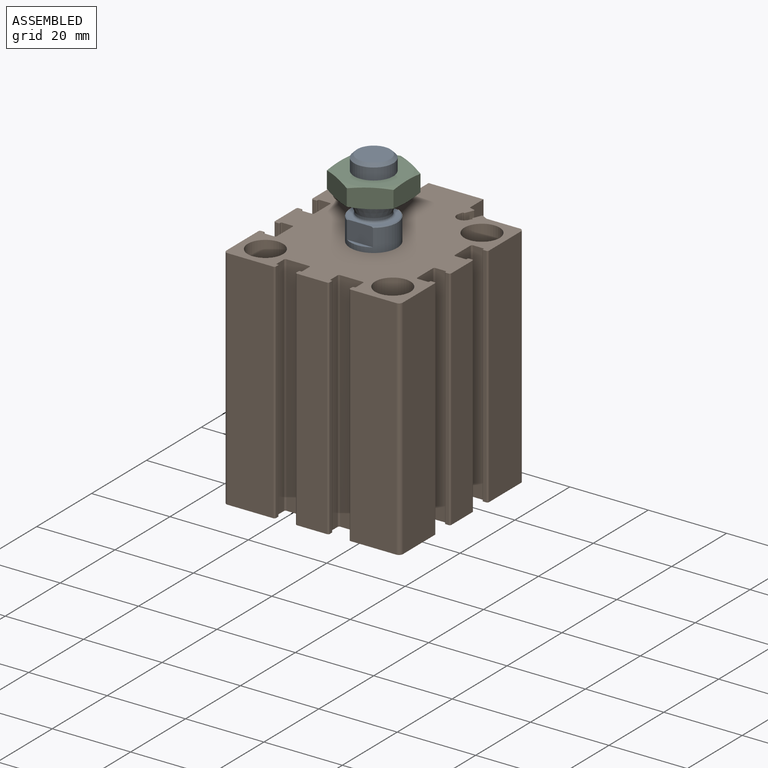
[diagram: assembled view]
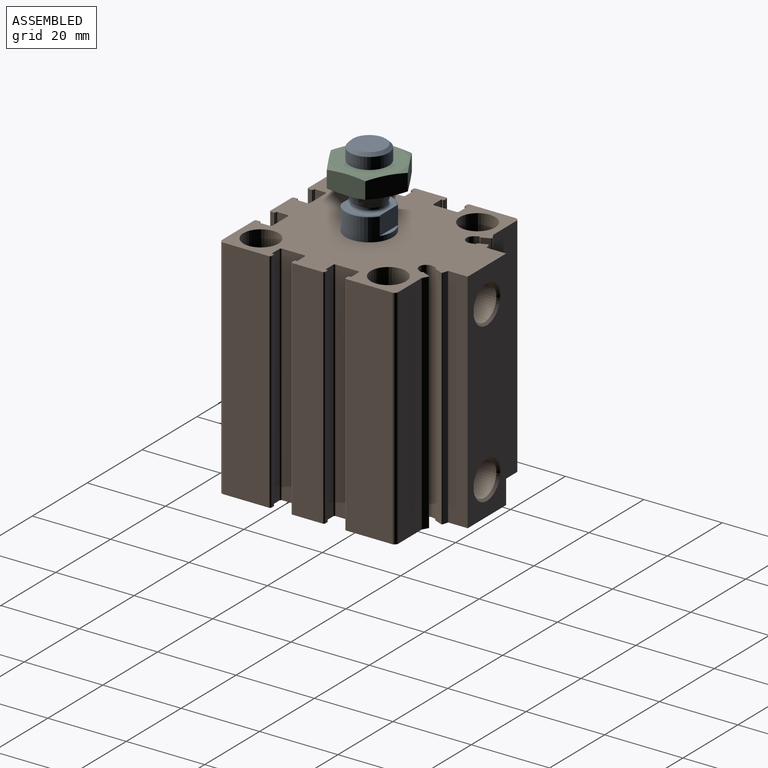
[diagram: assembled view, second angle]
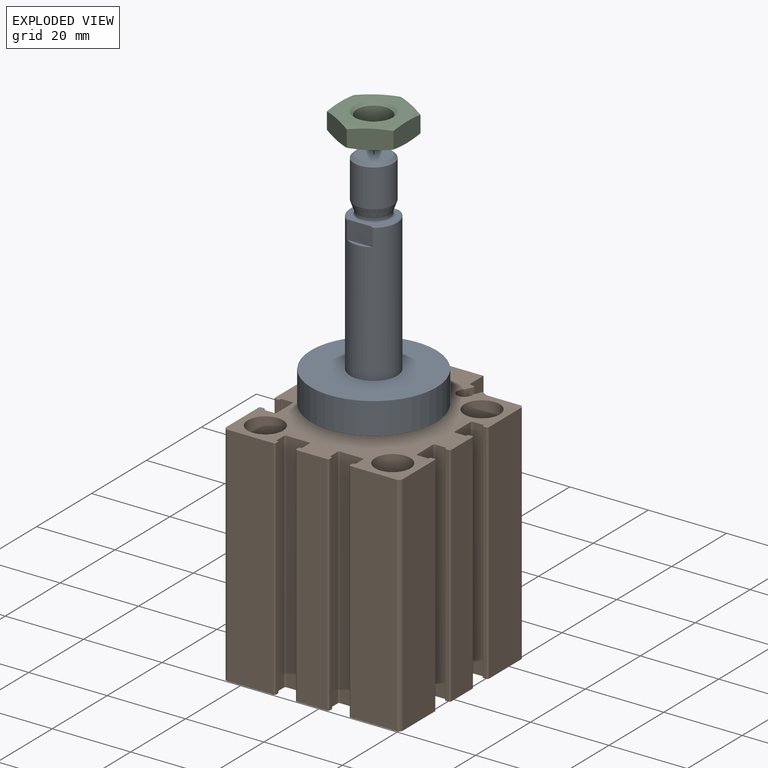
[diagram: exploded view]
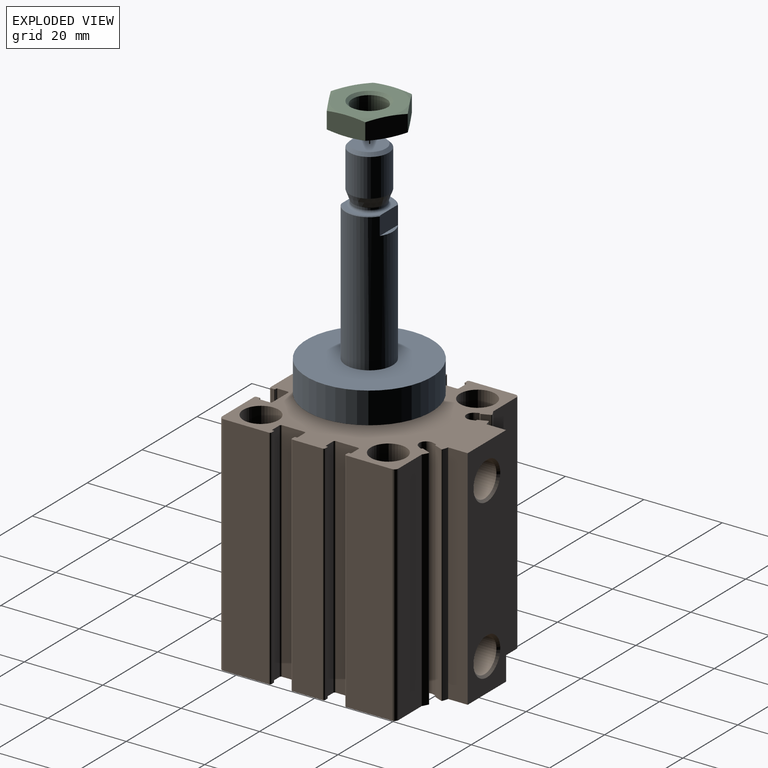
[diagram: exploded view, second angle]
ASSEMBLY  parts=3 mates=2
PART A: 18 faces, bbox 32x32x57.5 mm
  f0: plane 6.64x4.71mm, normal (0,-1,0), area 31.1mm2, adj f11,f12,f13,f14,f15
  f1: torus R=4.7mm, axis (0,0,-1), area 25.6mm2, adj f2,f13
  f2: cylinder r=4.1mm len=8.2mm, axis (0,0,1), area 11mm2, adj f1,f3
  f3: torus R=4.7mm, axis (0,0,-1), area 5.4mm2, adj f2,f4
  f4: cone r=5mm half-angle=20deg, axis (0,0,1), area 72.5mm2, adj f3,f5
  f5: cylinder r=5mm len=10mm, axis (0,0,1), area 302.4mm2, adj f4,f6
  f6: cone r=4.23mm half-angle=45deg, axis (0,0,-1), area 31.5mm2, adj f5,f7
  f7: plane 8.47x8.47mm, normal (0,0,1), area 56.3mm2, adj f6
  f8: plane 32x32mm, normal (0,0,-1), area 804.2mm2, adj f9
  f9: cylinder r=16mm len=32mm, axis (0,0,1), area 804.2mm2, adj f8,f10
  f10: plane 32x32mm, normal (0,0,1), area 691.2mm2, adj f9,f11
  f11: cylinder r=6mm len=35.3mm, axis (0,0,1), area 1267.5mm2, adj f0,f10,f12,f14,f15,f16,f17
  f12: cone r=5.8mm half-angle=45deg, axis (0,0,-1), area 3.4mm2, adj f0,f11,f13,f16
  f13: plane 11.6x10mm, normal (0,0,1), area 29.9mm2, adj f0,f1,f12,f14,f16
  f14: cone r=5.8mm half-angle=45deg, axis (0,0,-1), area 3.4mm2, adj f0,f11,f13,f16
  f15: plane 6.63x1mm, normal (0,0,1), area 4.5mm2, adj f0,f11
  f16: plane 6.64x4.71mm, normal (0,1,0), area 31.1mm2, adj f11,f12,f13,f14,f17
  f17: plane 6.63x1mm, normal (0,0,1), area 4.5mm2, adj f11,f16
PART B: 190 faces, bbox 45x52.5x58 mm
  f0: cylinder r=0.4mm len=58mm, axis (0,0,-1), area 36.4mm2, adj f1,f2,f10,f55
  f1: plane 52.5x45mm, normal (0,0,-1), area 1689.4mm2, adj f0,f2,f6,f43,f46,f49,f55,f57
  f2: plane 58x0.8mm, normal (0,1,0), area 46.4mm2, adj f0,f1,f10,f187
  f3: cylinder r=2.46mm len=15.46mm, axis (0,0,1), area 238.8mm2, adj f45,f188
  f4: cylinder r=2.46mm len=15.46mm, axis (0,0,1), area 238.8mm2, adj f35,f48
  f5: cylinder r=2.46mm len=15.46mm, axis (0,0,1), area 238.8mm2, adj f7,f189
  f6: cylinder r=4.5mm len=9mm, axis (0,0,1), area 161.2mm2, adj f1,f52
  f7: cone r=3mm half-angle=45deg, axis (0,0,1), area 13.1mm2, adj f5,f8
  f8: plane 9x9mm, normal (0,0,1), area 35.3mm2, adj f7,f9
  f9: cylinder r=4.5mm len=9mm, axis (0,0,1), area 161.2mm2, adj f8,f10
  f10: plane 52.5x45mm, normal (0,0,1), area 1576.4mm2, adj f0,f2,f9,f11,f21,f25,f29,f55
  f11: cylinder r=6mm len=12mm, axis (0,0,1), area 169.6mm2, adj f10,f12
  f12: plane 32x32mm, normal (0,0,-1), area 691.2mm2, adj f11,f13
  f13: cylinder r=16mm len=33mm, axis (0,0,1), area 3317.5mm2, adj f12,f14
  f14: plane 32x32mm, normal (0,0,1), area 804.2mm2, adj f13
  f15: cone r=4.86mm half-angle=45deg, axis (0,1,0), area 23.6mm2, adj f16,f141
  f16: cylinder r=4.28mm len=10.42mm, axis (0,1,0), area 280.4mm2, adj f15,f17
  f17: plane 8.57x8.57mm, normal (0,1,0), area 57.6mm2, adj f16
  f18: cone r=4.86mm half-angle=45deg, axis (0,1,0), area 23.6mm2, adj f19,f141
  f19: cylinder r=4.28mm len=10.42mm, axis (0,1,0), area 280.4mm2, adj f18,f20
  f20: plane 8.57x8.57mm, normal (0,1,0), area 57.6mm2, adj f19
  f21: cylinder r=4.5mm len=9mm, axis (0,0,1), area 161.2mm2, adj f10,f22
  f22: plane 9x9mm, normal (0,0,1), area 35.3mm2, adj f21,f23
  f23: cone r=3mm half-angle=45deg, axis (0,0,1), area 13.1mm2, adj f22,f24
  f24: cylinder r=2.46mm len=15.46mm, axis (0,0,1), area 238.8mm2, adj f23,f40
  f25: cylinder r=4.5mm len=9mm, axis (0,0,1), area 161.2mm2, adj f10,f26
  f26: plane 9x9mm, normal (0,0,1), area 35.3mm2, adj f25,f27
  f27: cone r=3mm half-angle=45deg, axis (0,0,1), area 13.1mm2, adj f26,f28
  f28: cylinder r=2.46mm len=15.46mm, axis (0,0,1), area 238.8mm2, adj f27,f37
  f29: cylinder r=4.5mm len=9mm, axis (0,0,1), area 161.2mm2, adj f10,f30
  f30: plane 9x9mm, normal (0,0,1), area 35.3mm2, adj f29,f31
  f31: cone r=3mm half-angle=45deg, axis (0,0,1), area 13.1mm2, adj f30,f32
  f32: cylinder r=2.46mm len=15.46mm, axis (0,0,1), area 238.8mm2, adj f31,f33
  f33: plane 5.2x5.2mm, normal (0,0,-1), area 2.2mm2, adj f32,f34
  f34: cylinder r=2.6mm len=14.6mm, axis (0,0,1), area 238.5mm2, adj f33,f35
  f35: plane 5.2x5.2mm, normal (0,0,1), area 2.2mm2, adj f4,f34
  f36: cylinder r=2.6mm len=14.6mm, axis (0,0,1), area 238.5mm2, adj f188,f189
  f37: plane 5.2x5.2mm, normal (0,0,-1), area 2.2mm2, adj f28,f39
  f38: plane 5.2x5.2mm, normal (0,0,1), area 2.2mm2, adj f39,f56
  f39: cylinder r=2.6mm len=14.6mm, axis (0,0,1), area 238.5mm2, adj f37,f38
  f40: plane 5.2x5.2mm, normal (0,0,-1), area 2.2mm2, adj f24,f42
  f41: plane 5.2x5.2mm, normal (0,0,1), area 2.2mm2, adj f42,f54
  f42: cylinder r=2.6mm len=14.6mm, axis (0,0,1), area 238.5mm2, adj f40,f41
  f43: cylinder r=4.5mm len=9mm, axis (0,0,1), area 161.2mm2, adj f1,f44
  f44: plane 9x9mm, normal (0,0,-1), area 35.3mm2, adj f43,f45
  f45: cone r=2.46mm half-angle=45deg, axis (0,0,-1), area 13.1mm2, adj f3,f44
  f46: cylinder r=4.5mm len=9mm, axis (0,0,1), area 161.2mm2, adj f1,f47
  f47: plane 9x9mm, normal (0,0,-1), area 35.3mm2, adj f46,f48
  f48: cone r=2.46mm half-angle=45deg, axis (0,0,-1), area 13.1mm2, adj f4,f47
  f49: cylinder r=4.5mm len=9mm, axis (0,0,1), area 161.2mm2, adj f1,f50
  f50: plane 9x9mm, normal (0,0,-1), area 35.3mm2, adj f49,f51
  f51: cone r=2.46mm half-angle=45deg, axis (0,0,-1), area 13.1mm2, adj f50,f56
  f52: plane 9x9mm, normal (0,0,-1), area 35.3mm2, adj f6,f53
  f53: cone r=2.46mm half-angle=45deg, axis (0,0,-1), area 13.1mm2, adj f52,f54
  f54: cylinder r=2.46mm len=15.46mm, axis (0,0,1), area 238.8mm2, adj f41,f53
  f55: plane 58x11.65mm, normal (-1,0,0), area 675.7mm2, adj f0,f1,f10,f57
  f56: cylinder r=2.46mm len=15.46mm, axis (0,0,1), area 238.8mm2, adj f38,f51
  f57: cylinder r=1mm len=58mm, axis (0,0,-1), area 91.1mm2, adj f1,f10,f55,f58
  f58: plane 58x11.65mm, normal (0,-1,0), area 675.7mm2, adj f1,f10,f57,f59
  f59: cylinder r=0.4mm len=58mm, axis (0,0,-1), area 36.4mm2, adj f1,f10,f58,f60
  f60: plane 58x0.8mm, normal (1,0,0), area 46.4mm2, adj f1,f10,f59,f61
  f61: cylinder r=0.2mm len=58mm, axis (0,0,-1), area 18.2mm2, adj f1,f10,f60,f62
  f62: plane 58x0.25mm, normal (0,1,0), area 14.5mm2, adj f1,f10,f61,f63
  f63: cylinder r=0.2mm len=58mm, axis (0,0,-1), area 18.2mm2, adj f1,f10,f62,f64
  f64: plane 58x2.6mm, normal (1,0,0), area 150.8mm2, adj f1,f10,f63,f65
  f65: cylinder r=0.4mm len=58mm, axis (0,0,-1), area 36.4mm2, adj f1,f10,f64,f66
  f66: plane 58x5.7mm, normal (0,-1,0), area 330.6mm2, adj f1,f10,f65,f67
  f67: cylinder r=0.4mm len=58mm, axis (0,0,-1), area 36.4mm2, adj f1,f10,f66,f68
  f68: plane 58x2.6mm, normal (-1,0,0), area 150.8mm2, adj f1,f10,f67,f69
  f69: cylinder r=0.2mm len=58mm, axis (0,0,-1), area 18.2mm2, adj f1,f10,f68,f70
  f70: plane 58x0.25mm, normal (0,1,0), area 14.5mm2, adj f1,f10,f69,f71
  f71: cylinder r=0.2mm len=58mm, axis (0,0,-1), area 18.2mm2, adj f1,f10,f70,f72
  f72: plane 58x0.8mm, normal (-1,0,0), area 46.4mm2, adj f1,f10,f71,f73
  f73: cylinder r=0.4mm len=58mm, axis (0,0,-1), area 36.4mm2, adj f1,f10,f72,f74
  f74: plane 58x7.7mm, normal (0,-1,0), area 446.6mm2, adj f1,f10,f73,f75
  f75: cylinder r=0.4mm len=58mm, axis (0,0,-1), area 36.4mm2, adj f1,f10,f74,f76
  f76: plane 58x0.8mm, normal (1,0,0), area 46.4mm2, adj f1,f10,f75,f77
  f77: cylinder r=0.2mm len=58mm, axis (0,0,-1), area 18.2mm2, adj f1,f10,f76,f78
  f78: plane 58x0.25mm, normal (0,1,0), area 14.5mm2, adj f1,f10,f77,f79
  f79: cylinder r=0.2mm len=58mm, axis (0,0,-1), area 18.2mm2, adj f1,f10,f78,f80
  f80: plane 58x2.6mm, normal (1,0,0), area 150.8mm2, adj f1,f10,f79,f81
  f81: cylinder r=0.4mm len=58mm, axis (0,0,-1), area 36.4mm2, adj f1,f10,f80,f82
  f82: plane 58x5.7mm, normal (0,-1,0), area 330.6mm2, adj f1,f10,f81,f83
  f83: cylinder r=0.4mm len=58mm, axis (0,0,-1), area 36.4mm2, adj f1,f10,f82,f84
  f84: plane 58x2.6mm, normal (-1,0,0), area 150.8mm2, adj f1,f10,f83,f85
  f85: cylinder r=0.2mm len=58mm, axis (0,0,-1), area 18.2mm2, adj f1,f10,f84,f86
  f86: plane 58x0.25mm, normal (0,1,0), area 14.5mm2, adj f1,f10,f85,f87
  f87: cylinder r=0.2mm len=58mm, axis (0,0,-1), area 18.2mm2, adj f1,f10,f86,f88
  f88: plane 58x0.8mm, normal (-1,0,0), area 46.4mm2, adj f1,f10,f87,f89
  f89: cylinder r=0.4mm len=58mm, axis (0,0,-1), area 36.4mm2, adj f1,f10,f88,f90
  f90: plane 58x11.65mm, normal (0,-1,0), area 675.7mm2, adj f1,f10,f89,f91
  f91: cylinder r=1mm len=58mm, axis (0,0,-1), area 91.1mm2, adj f1,f10,f90,f92
  f92: plane 58x11.65mm, normal (1,0,0), area 675.7mm2, adj f1,f10,f91,f93
  f93: cylinder r=0.4mm len=58mm, axis (0,0,-1), area 36.4mm2, adj f1,f10,f92,f94
  f94: plane 58x0.8mm, normal (0,1,0), area 46.4mm2, adj f1,f10,f93,f95
  f95: cylinder r=0.2mm len=58mm, axis (0,0,-1), area 18.2mm2, adj f1,f10,f94,f96
  f96: plane 58x0.25mm, normal (-1,0,0), area 14.5mm2, adj f1,f10,f95,f97
  f97: cylinder r=0.2mm len=58mm, axis (0,0,-1), area 18.2mm2, adj f1,f10,f96,f98
  f98: plane 58x2.6mm, normal (0,1,0), area 150.8mm2, adj f1,f10,f97,f99
  f99: cylinder r=0.4mm len=58mm, axis (0,0,-1), area 36.4mm2, adj f1,f10,f98,f100
  f100: plane 58x5.7mm, normal (1,0,0), area 330.6mm2, adj f1,f10,f99,f101
  f101: cylinder r=0.4mm len=58mm, axis (0,0,-1), area 36.4mm2, adj f1,f10,f100,f102
  f102: plane 58x2.6mm, normal (0,-1,0), area 150.8mm2, adj f1,f10,f101,f103
  f103: cylinder r=0.2mm len=58mm, axis (0,0,-1), area 18.2mm2, adj f1,f10,f102,f104
  f104: plane 58x0.25mm, normal (-1,0,0), area 14.5mm2, adj f1,f10,f103,f105
  f105: cylinder r=0.2mm len=58mm, axis (0,0,-1), area 18.2mm2, adj f1,f10,f104,f106
  f106: plane 58x0.8mm, normal (0,-1,0), area 46.4mm2, adj f1,f10,f105,f107
  f107: cylinder r=0.4mm len=58mm, axis (0,0,-1), area 36.4mm2, adj f1,f10,f106,f108
  f108: plane 58x7.7mm, normal (1,0,0), area 446.6mm2, adj f1,f10,f107,f109
  f109: cylinder r=0.4mm len=58mm, axis (0,0,-1), area 36.4mm2, adj f1,f10,f108,f110
  f110: plane 58x0.8mm, normal (0,1,0), area 46.4mm2, adj f1,f10,f109,f111
  f111: cylinder r=0.2mm len=58mm, axis (0,0,-1), area 18.2mm2, adj f1,f10,f110,f112
  f112: plane 58x0.25mm, normal (-1,0,0), area 14.5mm2, adj f1,f10,f111,f113
  f113: cylinder r=0.2mm len=58mm, axis (0,0,-1), area 18.2mm2, adj f1,f10,f112,f114
  f114: plane 58x2.6mm, normal (0,1,0), area 150.8mm2, adj f1,f10,f113,f115
  f115: cylinder r=0.4mm len=58mm, axis (0,0,-1), area 36.4mm2, adj f1,f10,f114,f116
  f116: plane 58x5.7mm, normal (1,0,0), area 330.6mm2, adj f1,f10,f115,f117
  f117: cylinder r=0.4mm len=58mm, axis (0,0,-1), area 36.4mm2, adj f1,f10,f116,f118
  f118: plane 58x2.6mm, normal (0,-1,0), area 150.8mm2, adj f1,f10,f117,f119
  f119: cylinder r=0.2mm len=58mm, axis (0,0,-1), area 18.2mm2, adj f1,f10,f118,f120
  f120: plane 58x0.25mm, normal (-1,0,0), area 14.5mm2, adj f1,f10,f119,f121
  f121: cylinder r=0.2mm len=58mm, axis (0,0,-1), area 18.2mm2, adj f1,f10,f120,f122
  f122: plane 58x0.8mm, normal (0,-1,0), area 46.4mm2, adj f1,f10,f121,f123
  f123: cylinder r=0.4mm len=58mm, axis (0,0,-1), area 36.4mm2, adj f1,f10,f122,f124
  f124: plane 58x11.65mm, normal (1,0,0), area 675.7mm2, adj f1,f10,f123,f125
  f125: cylinder r=1mm len=58mm, axis (0,0,-1), area 91.1mm2, adj f1,f10,f124,f126
  f126: plane 58x8.47mm, normal (0,1,0), area 491.3mm2, adj f1,f10,f125,f127
  f127: cylinder r=26mm len=58mm, axis (0,0,-1), area 93.9mm2, adj f1,f10,f126,f128
  f128: cylinder r=0.2mm len=58mm, axis (0,0,-1), area 19mm2, adj f1,f10,f127,f129
  f129: plane 58x2.07mm, normal (-0.92,0.38,0), area 129.8mm2, adj f1,f10,f128,f130
  f130: cylinder r=0.2mm len=58mm, axis (0,0,-1), area 18.2mm2, adj f1,f10,f129,f131
  f131: cylinder r=0.2mm len=58mm, axis (0,0,-1), area 19.5mm2, adj f1,f10,f130,f132
  f132: plane 58x0.86mm, normal (-0.88,0.48,0), area 57.1mm2, adj f1,f10,f131,f133
  f133: cylinder r=1.8mm len=58mm, axis (0,0,-1), area 304.6mm2, adj f1,f10,f132,f134
  f134: plane 58x0.95mm, normal (0.96,-0.28,0), area 57.1mm2, adj f1,f10,f133,f135
  f135: cylinder r=0.2mm len=58mm, axis (0,0,-1), area 19.5mm2, adj f1,f10,f134,f136
  f136: cylinder r=0.2mm len=58mm, axis (0,0,-1), area 18.2mm2, adj f1,f10,f135,f137
  f137: plane 58x2.07mm, normal (0.92,-0.38,0), area 129.8mm2, adj f1,f10,f136,f138
  f138: cylinder r=0.2mm len=58mm, axis (0,0,-1), area 19mm2, adj f1,f10,f137,f139
  f139: cylinder r=26mm len=58mm, axis (0,0,-1), area 87.1mm2, adj f1,f10,f138,f140
  f140: plane 58x4.99mm, normal (1,0,0), area 289.2mm2, adj f1,f10,f139,f141
  f141: plane 58x14mm, normal (0,1,0), area 663.3mm2, adj f1,f10,f15,f18,f140,f142
  f142: plane 58x4.99mm, normal (-1,0,0), area 289.2mm2, adj f1,f10,f141,f143
  f143: cylinder r=26mm len=58mm, axis (0,0,-1), area 87.1mm2, adj f1,f10,f142,f144
  f144: cylinder r=0.2mm len=58mm, axis (0,0,-1), area 19mm2, adj f1,f10,f143,f145
  f145: plane 58x2.07mm, normal (-0.92,-0.38,0), area 129.8mm2, adj f1,f10,f144,f146
  f146: cylinder r=0.2mm len=58mm, axis (0,0,-1), area 18.2mm2, adj f1,f10,f145,f147
  f147: cylinder r=0.2mm len=58mm, axis (0,0,-1), area 19.5mm2, adj f1,f10,f146,f148
  f148: plane 58x0.95mm, normal (-0.96,-0.28,0), area 57.1mm2, adj f1,f10,f147,f149
  f149: cylinder r=1.8mm len=58mm, axis (0,0,-1), area 304.6mm2, adj f1,f10,f148,f150
  f150: plane 58x0.86mm, normal (0.88,0.48,0), area 57.1mm2, adj f1,f10,f149,f151
  f151: cylinder r=0.2mm len=58mm, axis (0,0,-1), area 19.5mm2, adj f1,f10,f150,f152
  f152: cylinder r=0.2mm len=58mm, axis (0,0,-1), area 18.2mm2, adj f1,f10,f151,f153
  f153: plane 58x2.07mm, normal (0.92,0.38,0), area 129.8mm2, adj f1,f10,f152,f154
  f154: cylinder r=0.2mm len=58mm, axis (0,0,-1), area 19mm2, adj f1,f10,f153,f155
  f155: cylinder r=26mm len=58mm, axis (0,0,-1), area 93.9mm2, adj f1,f10,f154,f156
  f156: plane 58x8.47mm, normal (0,1,0), area 491.3mm2, adj f1,f10,f155,f157
  f157: cylinder r=1mm len=58mm, axis (0,0,-1), area 91.1mm2, adj f1,f10,f156,f158
  f158: plane 58x11.65mm, normal (-1,0,0), area 675.7mm2, adj f1,f10,f157,f159
  f159: cylinder r=0.4mm len=58mm, axis (0,0,-1), area 36.4mm2, adj f1,f10,f158,f160
  f160: plane 58x0.8mm, normal (0,-1,0), area 46.4mm2, adj f1,f10,f159,f161
  f161: cylinder r=0.2mm len=58mm, axis (0,0,-1), area 18.2mm2, adj f1,f10,f160,f162
  f162: plane 58x0.25mm, normal (1,0,0), area 14.5mm2, adj f1,f10,f161,f163
  f163: cylinder r=0.2mm len=58mm, axis (0,0,-1), area 18.2mm2, adj f1,f10,f162,f164
  f164: plane 58x2.6mm, normal (0,-1,0), area 150.8mm2, adj f1,f10,f163,f165
  f165: cylinder r=0.4mm len=58mm, axis (0,0,-1), area 36.4mm2, adj f1,f10,f164,f166
  f166: plane 58x5.7mm, normal (-1,0,0), area 330.6mm2, adj f1,f10,f165,f167
  f167: cylinder r=0.4mm len=58mm, axis (0,0,-1), area 36.4mm2, adj f1,f10,f166,f168
  f168: plane 58x2.6mm, normal (0,1,0), area 150.8mm2, adj f1,f10,f167,f169
  f169: cylinder r=0.2mm len=58mm, axis (0,0,-1), area 18.2mm2, adj f1,f10,f168,f170
  f170: plane 58x0.25mm, normal (1,0,0), area 14.5mm2, adj f1,f10,f169,f171
  f171: cylinder r=0.2mm len=58mm, axis (0,0,-1), area 18.2mm2, adj f1,f10,f170,f172
  f172: plane 58x0.8mm, normal (0,1,0), area 46.4mm2, adj f1,f10,f171,f173
  f173: cylinder r=0.4mm len=58mm, axis (0,0,-1), area 36.4mm2, adj f1,f10,f172,f174
  f174: plane 58x7.7mm, normal (-1,0,0), area 446.6mm2, adj f1,f10,f173,f175
  f175: cylinder r=0.4mm len=58mm, axis (0,0,-1), area 36.4mm2, adj f1,f10,f174,f176
  f176: plane 58x0.8mm, normal (0,-1,0), area 46.4mm2, adj f1,f10,f175,f177
  f177: cylinder r=0.2mm len=58mm, axis (0,0,-1), area 18.2mm2, adj f1,f10,f176,f178
  f178: plane 58x0.25mm, normal (1,0,0), area 14.5mm2, adj f1,f10,f177,f179
  f179: cylinder r=0.2mm len=58mm, axis (0,0,-1), area 18.2mm2, adj f1,f10,f178,f180
  f180: plane 58x2.6mm, normal (0,-1,0), area 150.8mm2, adj f1,f10,f179,f181
  f181: cylinder r=0.4mm len=58mm, axis (0,0,-1), area 36.4mm2, adj f1,f10,f180,f182
  f182: plane 58x5.7mm, normal (-1,0,0), area 330.6mm2, adj f1,f10,f181,f183
  f183: cylinder r=0.4mm len=58mm, axis (0,0,-1), area 36.4mm2, adj f1,f10,f182,f184
  f184: plane 58x2.6mm, normal (0,1,0), area 150.8mm2, adj f1,f10,f183,f185
  f185: cylinder r=0.2mm len=58mm, axis (0,0,-1), area 18.2mm2, adj f1,f10,f184,f186
  f186: plane 58x0.25mm, normal (1,0,0), area 14.5mm2, adj f1,f10,f185,f187
  f187: cylinder r=0.2mm len=58mm, axis (0,0,-1), area 18.2mm2, adj f1,f2,f10,f186
  f188: plane 5.2x5.2mm, normal (0,0,1), area 2.2mm2, adj f3,f36
  f189: plane 5.2x5.2mm, normal (0,0,-1), area 2.2mm2, adj f5,f36
PART C: 13 faces, bbox 19.6x5x19.6 mm
  f0: plane 9.82x4.98mm, normal (-1,0,0), area 46.4mm2, adj f1,f2,f4,f8
  f1: plane 8.5x4.98mm, normal (-0.5,0,-0.87), area 46.4mm2, adj f0,f2,f8,f12
  f2: cone r=17.78mm half-angle=75deg, axis (0,1,0), area 26.9mm2, adj f0,f1,f3,f4,f5,f6,f12
  f3: plane 9.82x4.98mm, normal (1,0,0), area 46.4mm2, adj f2,f6,f8,f12
  f4: plane 8.5x4.98mm, normal (-0.5,0,0.87), area 46.4mm2, adj f0,f2,f6,f8
  f5: plane 16.9x16.9mm, normal (0,-1,0), area 145.8mm2, adj f2,f9
  f6: plane 8.5x4.98mm, normal (0.5,0,0.87), area 46.4mm2, adj f2,f3,f4,f8
  f7: plane 16.9x16.9mm, normal (0,1,0), area 145.8mm2, adj f8,f11
  f8: cone r=8.45mm half-angle=75deg, axis (0,-1,0), area 26.9mm2, adj f0,f1,f3,f4,f6,f7,f12
  f9: cone r=4.32mm half-angle=45deg, axis (0,-1,0), area 28mm2, adj f5,f10
  f10: cylinder r=4.32mm len=8.65mm, axis (0,1,0), area 99.1mm2, adj f9,f11
  f11: cone r=5mm half-angle=45deg, axis (0,1,0), area 28mm2, adj f7,f10
  f12: plane 8.5x4.98mm, normal (0.5,0,-0.87), area 46.4mm2, adj f1,f2,f3,f8
PLACE A at identity
PLACE B at identity fixed
PLACE C rot(axis=(1,0,0),90deg) t=(0,0,16.23)mm
MATE fastened C.f2 <-> A.f3  axis (0,0,1) through (0,0,16.23)mm
MATE slider A.f9 <-> B.f11  axis (0,0,-1) through (0,0,-37.5)mm
